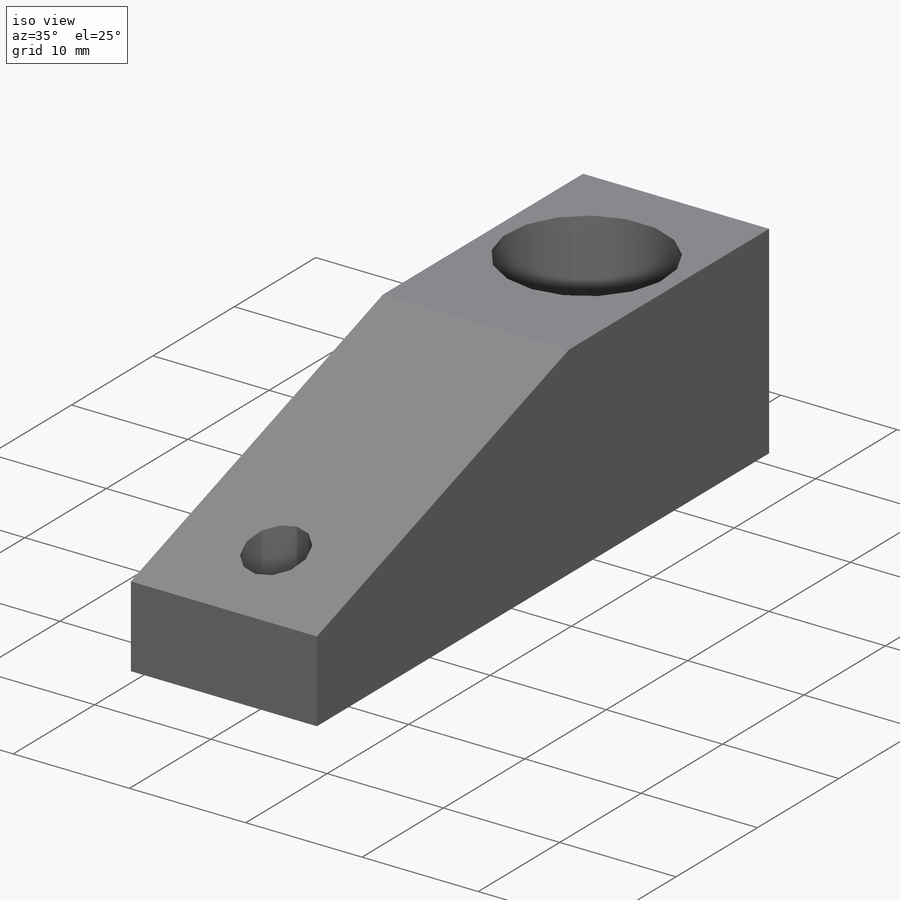
[diagram: iso view]
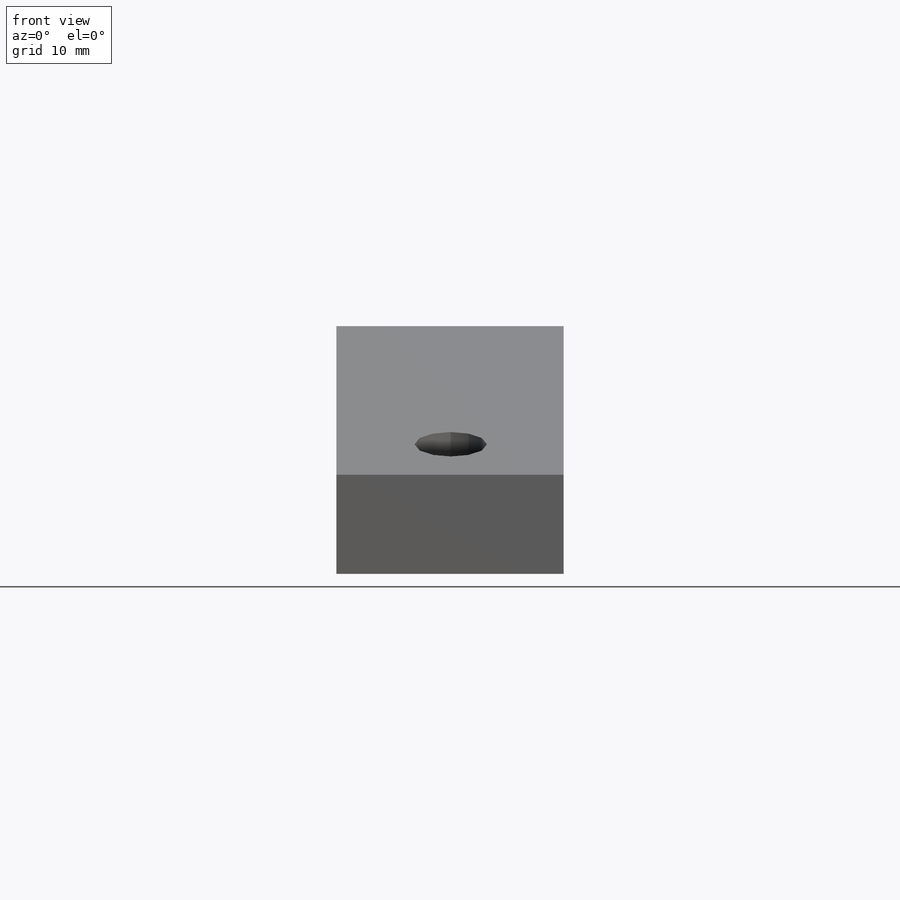
[diagram: front view]
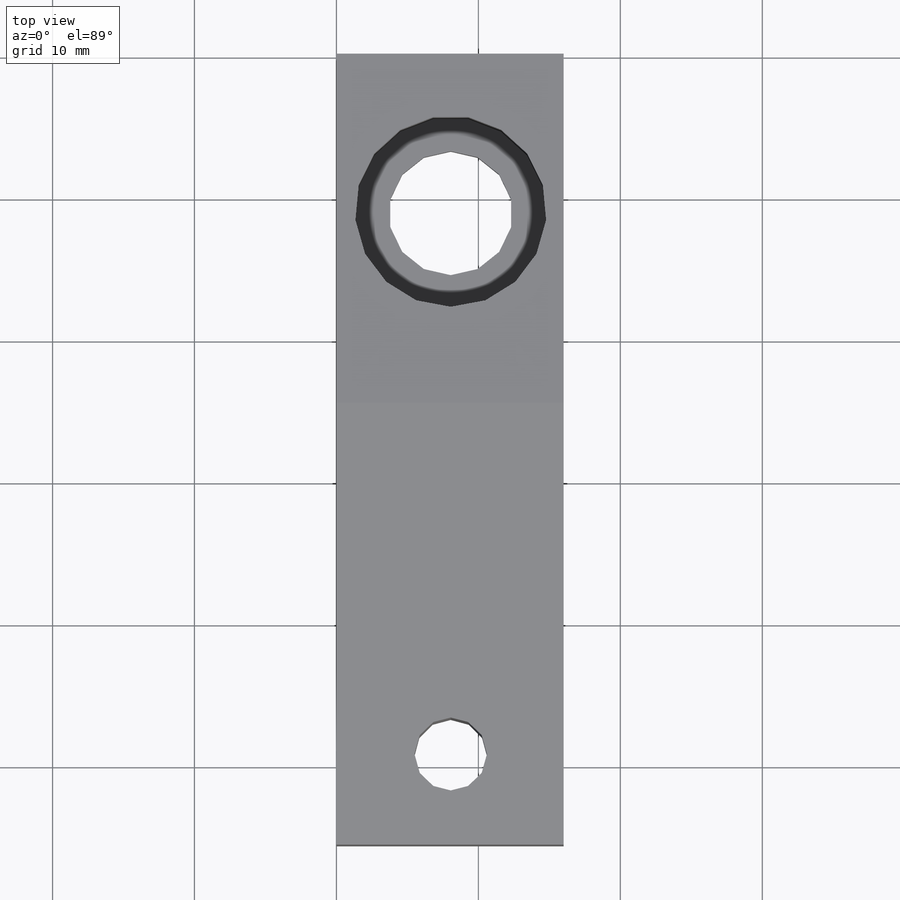
[diagram: top view]
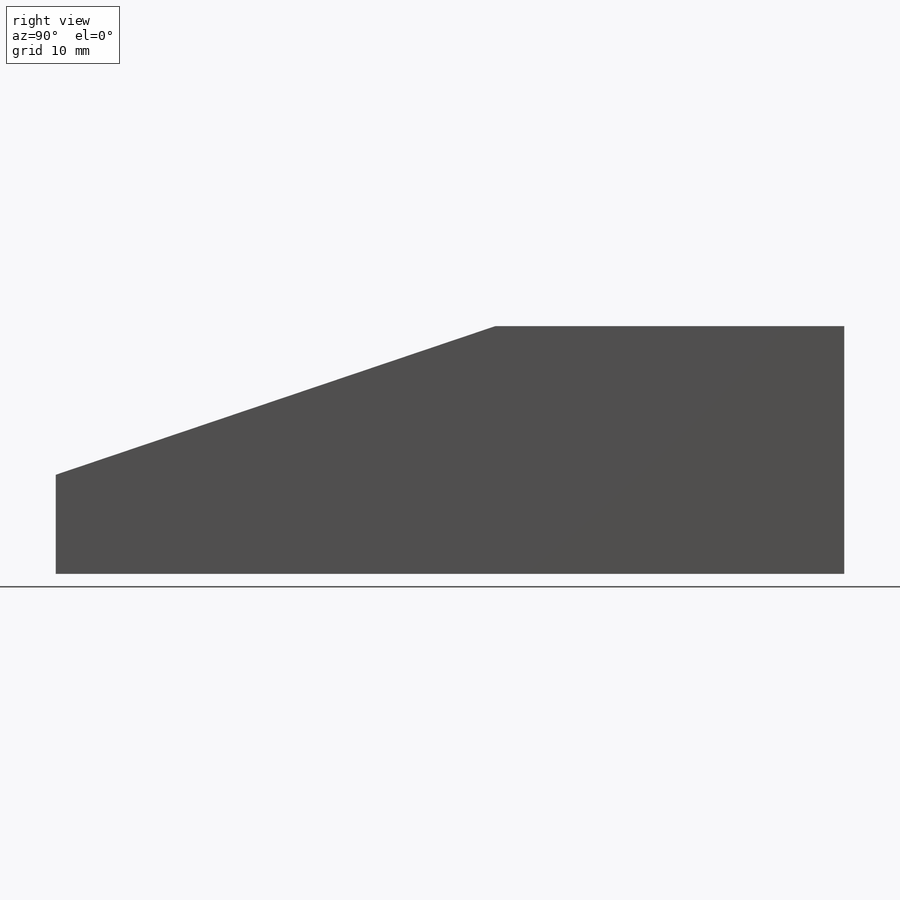
[diagram: right view]
SOLIDWORKS PART (.sldprt)
format: sldprt  version: not decoded by parser v0  size: 179,712 bytes
history: native  units: mm
features: sketch x4, cut_extrude x2, material x1, extrude x1, plane x1, cut_revolve x1, fillet x1 (+13 scaffold rows collapsed)
feature tree (24):
  scaffold x13  (default folders/planes/origin — collapsed)
  material  "Alloy Steel"
  sketch  "Sketch1"  dims[D1=16.002mm D2=55.5498mm]
  extrude  "Extrude1"  Depth=17.4498mm
  plane  "Plane1"  Offset=7.9502mm
  sketch  "Sketch3"  dims[c1.D1=11.0998mm c1.D2=13.4874mm c1.D3=7.9248mm c1.D4=8.7376mm c1.D5=6.6548mm c1.D6=~13.529302mm c2.D6=3.5deg c2.D7=12.4968mm]
  cut_revolve  "Cut-Revolve1"  Angle=360deg
  fillet  "Fillet1"  Radius=0.381mm
  sketch  "Sketch4"  dims[D1=13.4874mm D2=~6.97992mm]
  cut_extrude  "Cut-Extrude1"  [1 undecoded]
  sketch  "Sketch5"  dims[D1=5.1054mm D2=38.1mm]
  cut_extrude  "Cut-Extrude2"  [1 undecoded]
decode coverage: 7 of 9 modeling features carry decoded parameters
note: ~ marks probable driven/reference dimensions
note: 2 parameter values undecoded
note: suppression state not decoded; provenance and decode notes live in map.json
